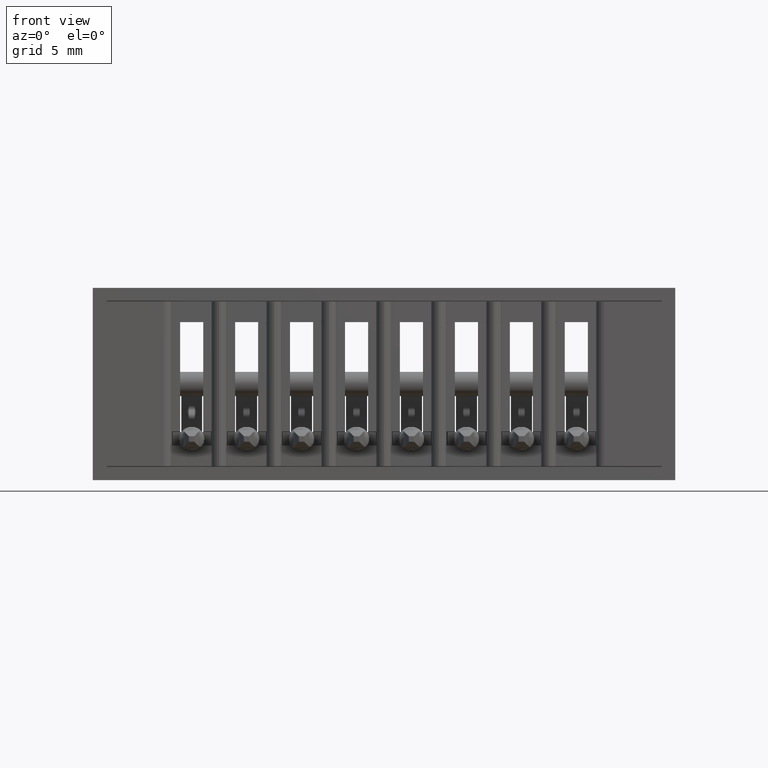
[diagram: clean part render]
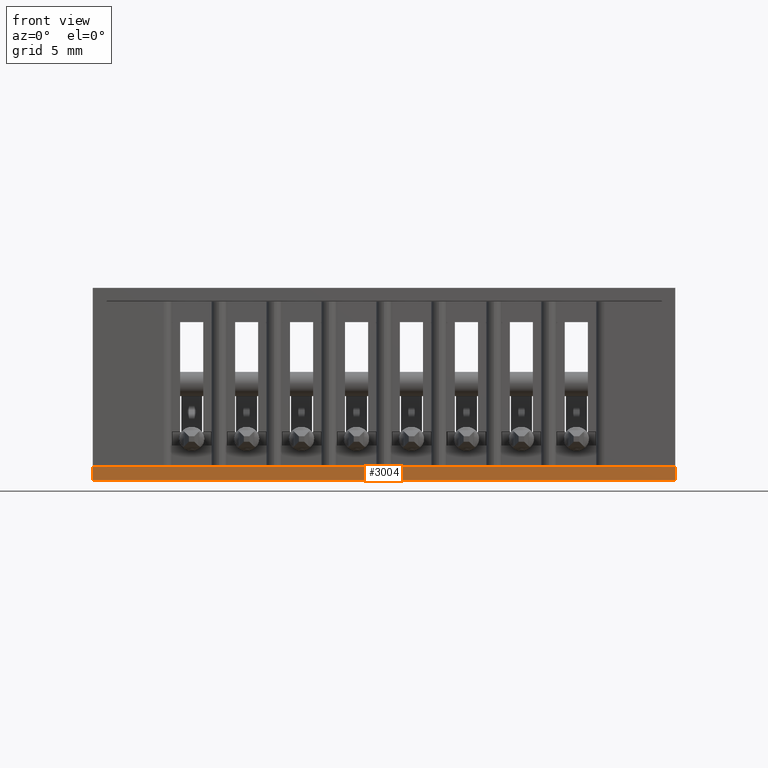
[diagram: same view with one face highlighted and labeled with its STEP entity id]
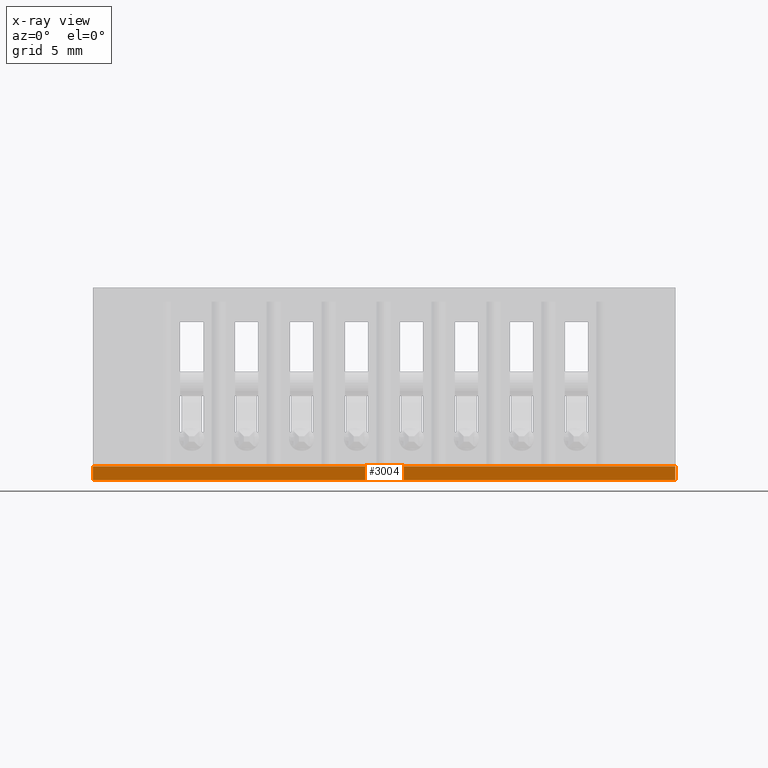
[diagram: x-ray of the same camera — body ghosted, the highlighted face saturated]
A machine part, front view. The second image highlights one B-rep face of the part: STEP entity #3004.
The next image is the same camera in x-ray: the body ghosted, the highlighted face saturated — about 0% of this face is hidden behind the body in this view.
In plain terms, the highlighted planar face has unit normal (0, 1, 0).
Its self-contained STEP definition (entity closure, byte-faithful):
#250 = ORIENTED_EDGE ( 'NONE', *, *, #12598, .T. ) ;
#259 = VERTEX_POINT ( 'NONE', #10659 ) ;
#1394 = LINE ( 'NONE', #9764, #5084 ) ;
#1468 = DIRECTION ( 'NONE',  ( -0.0000000000000000000, -0.0000000000000000000, -1.000000000000000000 ) ) ;
#1966 = ORIENTED_EDGE ( 'NONE', *, *, #2471, .F. ) ;
#2471 = EDGE_CURVE ( 'NONE', #259, #5165, #1394, .T. ) ;
#2666 = DIRECTION ( 'NONE',  ( 0.0000000000000000000, -0.0000000000000000000, 1.000000000000000000 ) ) ;
#3004 = ADVANCED_FACE ( 'NONE', ( #11004 ), #9576, .F. ) ;
#3151 = ORIENTED_EDGE ( 'NONE', *, *, #3668, .F. ) ;
#3204 = CARTESIAN_POINT ( 'NONE',  ( 0.0000000000000000000, 0.1000000000000000100, -0.3249999999999999600 ) ) ;
#3668 = EDGE_CURVE ( 'NONE', #5165, #8423, #10347, .T. ) ;
#4112 = EDGE_CURVE ( 'NONE', #17365, #8423, #16727, .T. ) ;
#5084 = VECTOR ( 'NONE', #1468, 39.37007874015748100 ) ;
#5165 = VERTEX_POINT ( 'NONE', #8118 ) ;
#5241 = DIRECTION ( 'NONE',  ( -1.000000000000000000, -0.0000000000000000000, -0.0000000000000000000 ) ) ;
#5626 = DIRECTION ( 'NONE',  ( -1.000000000000000000, -0.0000000000000000000, -0.0000000000000000000 ) ) ;
#5778 = VECTOR ( 'NONE', #9456, 39.37007874015748100 ) ;
#5919 = LINE ( 'NONE', #13467, #8735 ) ;
#6673 = VECTOR ( 'NONE', #5626, 39.37007874015748100 ) ;
#7162 = EDGE_LOOP ( 'NONE', ( #17208, #3151, #1966, #250 ) ) ;
#8118 = CARTESIAN_POINT ( 'NONE',  ( 1.060000000000000100, 0.1000000000000000100, -0.3499999999999999800 ) ) ;
#8423 = VERTEX_POINT ( 'NONE', #12237 ) ;
#8735 = VECTOR ( 'NONE', #5241, 39.37007874015748100 ) ;
#9456 = DIRECTION ( 'NONE',  ( -0.0000000000000000000, -0.0000000000000000000, -1.000000000000000000 ) ) ;
#9576 = PLANE ( 'NONE',  #16196 ) ;
#9764 = CARTESIAN_POINT ( 'NONE',  ( 1.060000000000000100, 0.1000000000000000100, -0.3499999999999999800 ) ) ;
#10347 = LINE ( 'NONE', #15231, #6673 ) ;
#10659 = CARTESIAN_POINT ( 'NONE',  ( 1.060000000000000100, 0.1000000000000000100, -0.3249999999999999600 ) ) ;
#10953 = DIRECTION ( 'NONE',  ( 0.0000000000000000000, 1.000000000000000000, 0.0000000000000000000 ) ) ;
#11004 = FACE_OUTER_BOUND ( 'NONE', #7162, .T. ) ;
#12237 = CARTESIAN_POINT ( 'NONE',  ( 0.0000000000000000000, 0.1000000000000000100, -0.3499999999999999800 ) ) ;
#12598 = EDGE_CURVE ( 'NONE', #259, #17365, #5919, .T. ) ;
#13467 = CARTESIAN_POINT ( 'NONE',  ( 1.060000000000000100, 0.1000000000000000100, -0.3249999999999999600 ) ) ;
#14859 = CARTESIAN_POINT ( 'NONE',  ( 0.0000000000000000000, 0.1000000000000000100, -0.3499999999999999800 ) ) ;
#14986 = CARTESIAN_POINT ( 'NONE',  ( 1.060000000000000100, 0.1000000000000000100, -0.3499999999999999800 ) ) ;
#15231 = CARTESIAN_POINT ( 'NONE',  ( 1.060000000000000100, 0.1000000000000000100, -0.3499999999999999800 ) ) ;
#16196 = AXIS2_PLACEMENT_3D ( 'NONE', #14986, #10953, #2666 ) ;
#16727 = LINE ( 'NONE', #14859, #5778 ) ;
#17208 = ORIENTED_EDGE ( 'NONE', *, *, #4112, .T. ) ;
#17365 = VERTEX_POINT ( 'NONE', #3204 ) ;